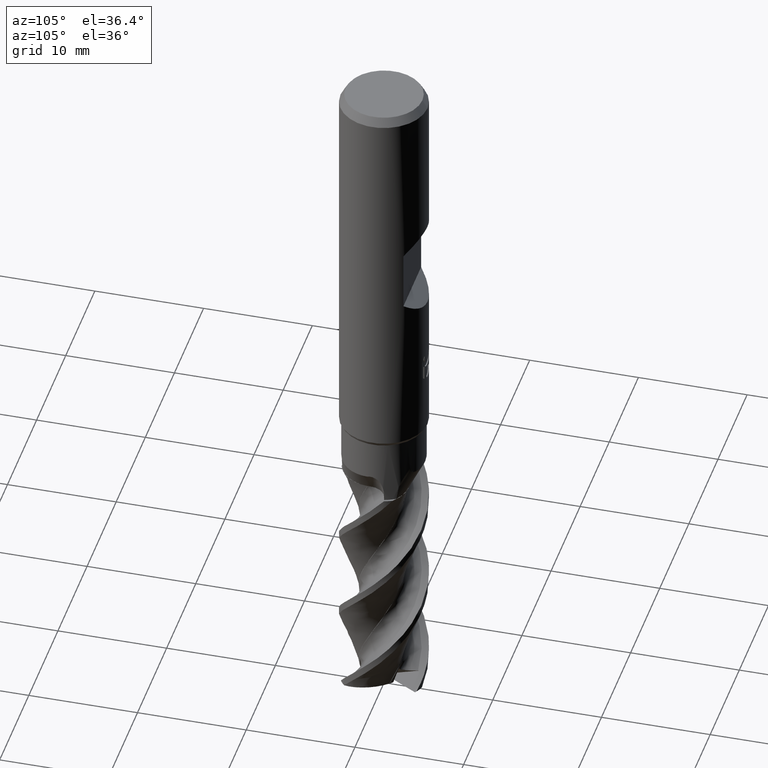
[diagram: clean part render]
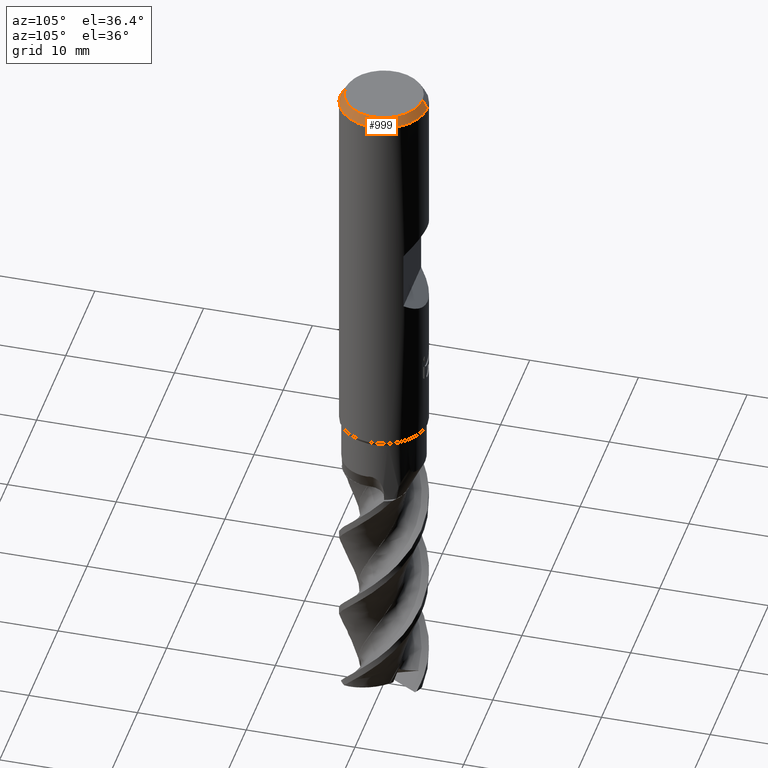
[diagram: same view with one face highlighted and labeled with its STEP entity id]
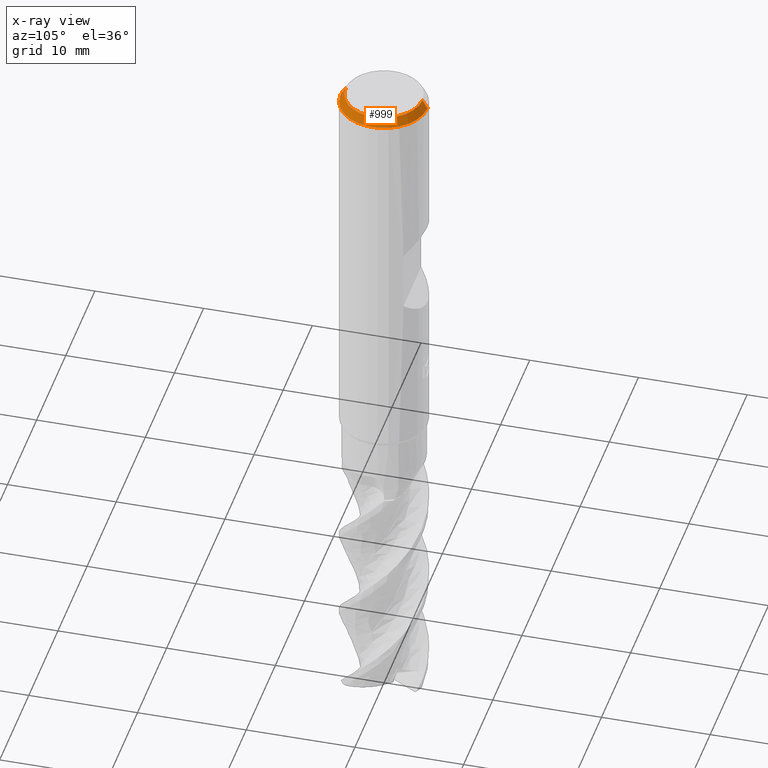
[diagram: x-ray of the same camera — body ghosted, the highlighted face saturated]
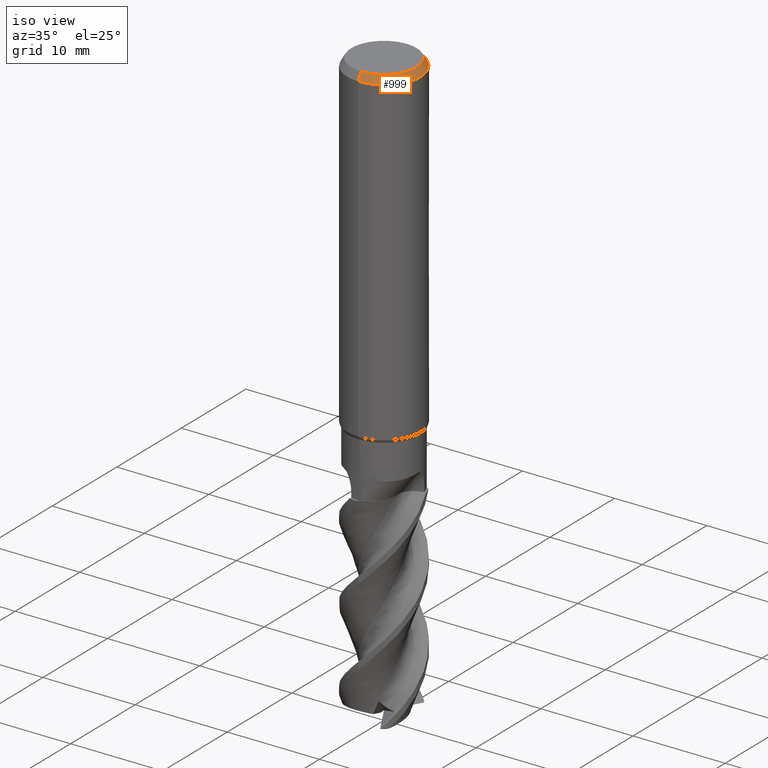
[diagram: same view with one face highlighted and labeled with its STEP entity id]
A machine part, auxiliary view. The second image highlights one B-rep face of the part: STEP entity #999.
The next image is the same camera in x-ray: the body ghosted, the highlighted face saturated — about 0% of this face is hidden behind the body in this view.
A second angle (iso view) of the same face is appended — the face is thin or edge-on in the first view.
In plain terms, the highlighted conical surface has half-angle 30 deg.
Its self-contained STEP definition (entity closure, byte-faithful):
#507=EDGE_CURVE('',#1169,#1325,#1448,.T.);
#553=EDGE_CURVE('',#629,#1001,#1500,.T.);
#629=VERTEX_POINT('',#1586);
#637=EDGE_CURVE('',#1169,#629,#1594,.T.);
#727=EDGE_CURVE('',#1001,#1325,#1689,.T.);
#999=ADVANCED_FACE('',(#1984),#1985,.T.);
#1001=VERTEX_POINT('',#1987);
#1169=VERTEX_POINT('',#2168);
#1325=VERTEX_POINT('',#2341);
#1448=CIRCLE('',#2677,3.5381197846483);
#1500=CIRCLE('',#3168,4.0);
#1586=CARTESIAN_POINT('',(0.0,4.0,-0.799999999999997));
#1594=LINE('',#3802,#3803);
#1689=LINE('',#4610,#4611);
#1984=FACE_OUTER_BOUND('',#6938,.T.);
#1985=CONICAL_SURFACE('',#6939,3.76905989232415,0.523598775598301);
#1987=CARTESIAN_POINT('',(4.89842541528951E-016,-4.0,-0.799999999999997));
#2168=CARTESIAN_POINT('',(0.0,3.5381197846483,0.0));
#2341=CARTESIAN_POINT('',(4.33280396886497E-016,-3.5381197846483,0.0));
#2677=AXIS2_PLACEMENT_3D('',#10642,#10643,#10644);
#3168=AXIS2_PLACEMENT_3D('',#10732,#10733,#10734);
#3802=CARTESIAN_POINT('',(-4.61561469207724E-016,3.76905989232415,-0.399999999999999));
#3803=VECTOR('',#10861,1.0);
#4610=CARTESIAN_POINT('',(4.61561469207724E-016,-3.76905989232415,-0.399999999999999));
#4611=VECTOR('',#10916,1.0);
#6938=EDGE_LOOP('',(#11182,#11183,#11184,#11185));
#6939=AXIS2_PLACEMENT_3D('',#11186,#11187,#11188);
#10642=CARTESIAN_POINT('',(0.0,0.0,0.0));
#10643=DIRECTION('',(0.0,0.0,-1.0));
#10644=DIRECTION('',(0.0,1.0,0.0));
#10732=CARTESIAN_POINT('',(0.0,0.0,-0.799999999999997));
#10733=DIRECTION('',(0.0,0.0,-1.0));
#10734=DIRECTION('',(0.0,1.0,0.0));
#10861=DIRECTION('',(-6.1230317691119E-017,0.500000000000001,-0.866025403784438));
#10916=DIRECTION('',(-6.1230317691119E-017,0.500000000000001,0.866025403784438));
#11182=ORIENTED_EDGE('',*,*,#637,.F.);
#11183=ORIENTED_EDGE('',*,*,#507,.T.);
#11184=ORIENTED_EDGE('',*,*,#727,.F.);
#11185=ORIENTED_EDGE('',*,*,#553,.F.);
#11186=CARTESIAN_POINT('',(0.0,0.0,-0.399999999999999));
#11187=DIRECTION('',(0.0,-0.0,-1.0));
#11188=DIRECTION('',(0.0,1.0,0.0));